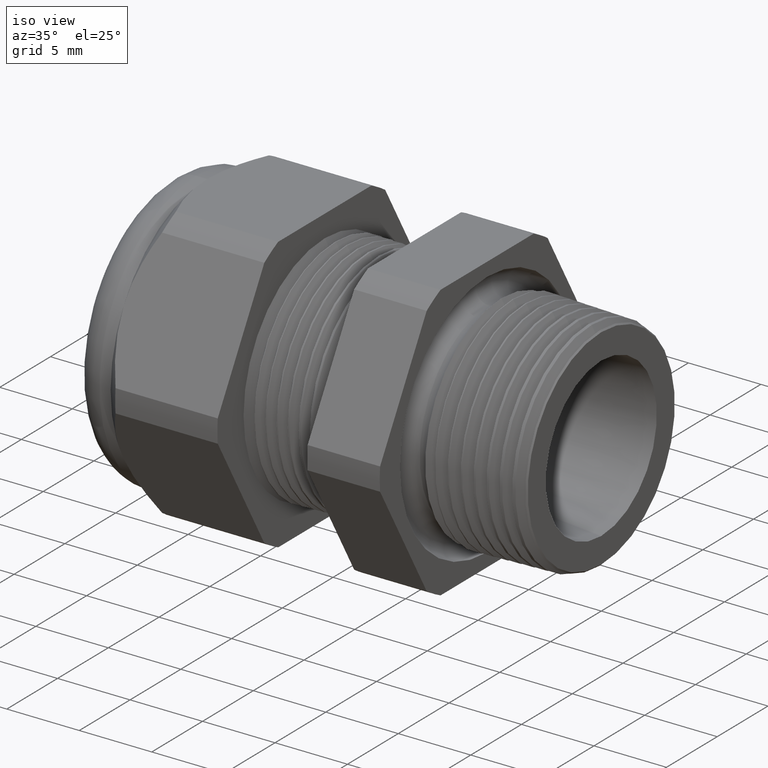
[diagram: clean part render]
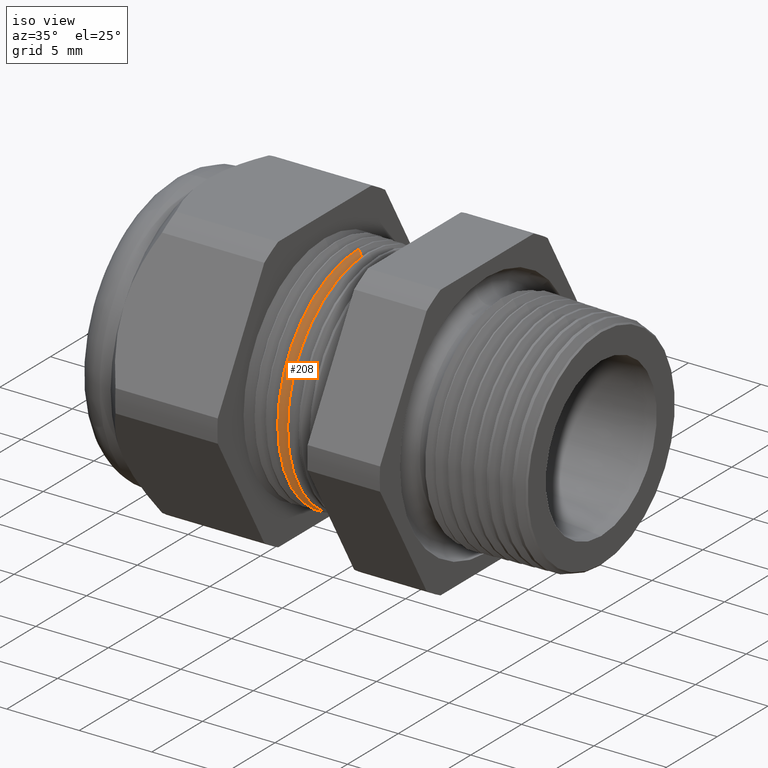
[diagram: same view with one face highlighted and labeled with its STEP entity id]
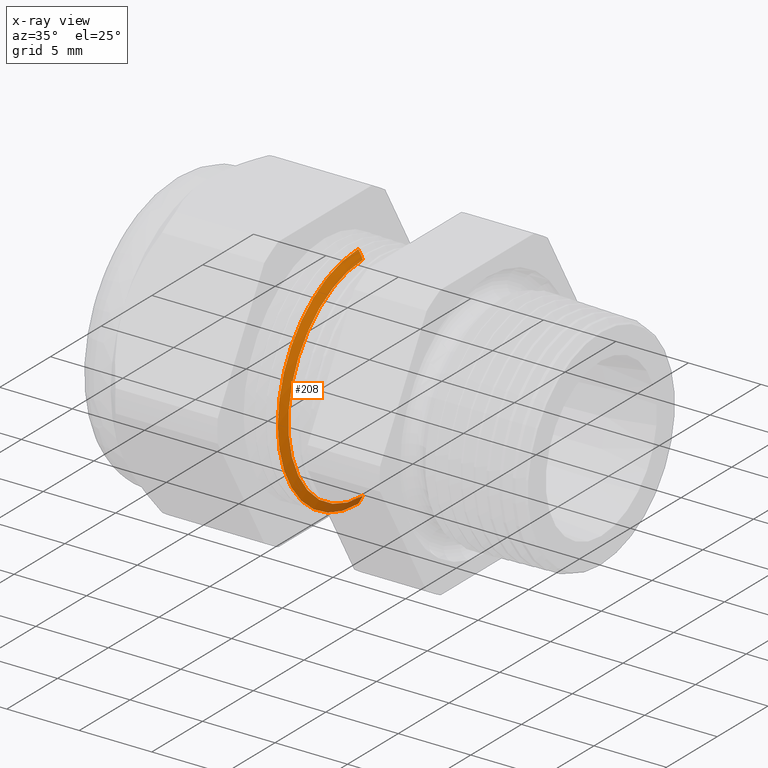
[diagram: x-ray of the same camera — body ghosted, the highlighted face saturated]
A machine part, iso view. The second image highlights one B-rep face of the part: STEP entity #208.
The next image is the same camera in x-ray: the body ghosted, the highlighted face saturated — about 8% of this face is hidden behind the body in this view.
In plain terms, the highlighted conical surface has half-angle 61.5 deg.
Its self-contained STEP definition (entity closure, byte-faithful):
#208 = ADVANCED_FACE ( 'NONE', ( #1420 ), #1419, .T. ) ;
#209 = EDGE_LOOP ( 'NONE', ( #210, #211, #213, #1050 ) ) ;
#210 = ORIENTED_EDGE ( 'NONE', *, *, #919, .F. ) ;
#211 = ORIENTED_EDGE ( 'NONE', *, *, #212, .F. ) ;
#212 = EDGE_CURVE ( 'NONE', #936, #929, #1418, .T. ) ;
#213 = ORIENTED_EDGE ( 'NONE', *, *, #953, .T. ) ;
#919 = EDGE_CURVE ( 'NONE', #929, #920, #2672, .T. ) ;
#920 = VERTEX_POINT ( 'NONE', #2668 ) ;
#929 = VERTEX_POINT ( 'NONE', #2719 ) ;
#936 = VERTEX_POINT ( 'NONE', #2700 ) ;
#940 = VERTEX_POINT ( 'NONE', #2693 ) ;
#953 = EDGE_CURVE ( 'NONE', #936, #940, #2731, .T. ) ;
#1050 = ORIENTED_EDGE ( 'NONE', *, *, #4028, .T. ) ;
#1416 = DIRECTION ( 'NONE',  ( -1.000000000000000000, 0.0000000000000000000, 0.0000000000000000000 ) ) ;
#1417 = AXIS2_PLACEMENT_3D ( 'NONE', #1424, #1416, #1480 ) ;
#1418 = CIRCLE ( 'NONE', #1479, 0.2896307351718083200 ) ;
#1419 = CONICAL_SURFACE ( 'NONE', #1417, 0.3150000000000000000, 1.073377489976500100 ) ;
#1420 = FACE_OUTER_BOUND ( 'NONE', #209, .T. ) ;
#1424 = CARTESIAN_POINT ( 'NONE',  ( -0.6608661417322834200, 0.0000000000000000000, 0.0000000000000000000 ) ) ;
#1476 = DIRECTION ( 'NONE',  ( 0.0000000000000000000, 0.0000000000000000000, -1.000000000000000000 ) ) ;
#1477 = DIRECTION ( 'NONE',  ( 1.000000000000000000, 0.0000000000000000000, 0.0000000000000000000 ) ) ;
#1478 = CARTESIAN_POINT ( 'NONE',  ( -0.6470917547981793700, 0.0000000000000000000, 0.0000000000000000000 ) ) ;
#1479 = AXIS2_PLACEMENT_3D ( 'NONE', #1478, #1477, #1476 ) ;
#1480 = DIRECTION ( 'NONE',  ( 0.0000000000000000000, 0.0000000000000000000, 1.000000000000000000 ) ) ;
#2668 = CARTESIAN_POINT ( 'NONE',  ( -0.6595680846391957000, 3.828902741387178900E-017, -0.3126092762375419200 ) ) ;
#2669 = DIRECTION ( 'NONE',  ( -0.4771587602596195100, 1.076240564057387400E-016, -0.8788171126619593900 ) ) ;
#2670 = VECTOR ( 'NONE', #2669, 39.37007874015748100 ) ;
#2671 = CARTESIAN_POINT ( 'NONE',  ( -0.6608661417322834200, 3.857637417314162700E-017, -0.3150000000000000000 ) ) ;
#2672 = LINE ( 'NONE', #2671, #2670 ) ;
#2693 = CARTESIAN_POINT ( 'NONE',  ( -0.6595680846391957000, 0.0000000000000000000, 0.3126092762375419200 ) ) ;
#2700 = CARTESIAN_POINT ( 'NONE',  ( -0.6470917547981793700, 0.0000000000000000000, 0.2896307351718083200 ) ) ;
#2719 = CARTESIAN_POINT ( 'NONE',  ( -0.6470917547981793700, 3.687656511454631100E-017, -0.2896307351718083200 ) ) ;
#2728 = DIRECTION ( 'NONE',  ( -0.4771587602596195100, 0.0000000000000000000, 0.8788171126619593900 ) ) ;
#2729 = VECTOR ( 'NONE', #2728, 39.37007874015748100 ) ;
#2730 = CARTESIAN_POINT ( 'NONE',  ( -0.6608661417322834200, 0.0000000000000000000, 0.3150000000000000000 ) ) ;
#2731 = LINE ( 'NONE', #2730, #2729 ) ;
#3522 = DIRECTION ( 'NONE',  ( 0.0000000000000000000, 0.0000000000000000000, 1.000000000000000000 ) ) ;
#3523 = DIRECTION ( 'NONE',  ( 1.000000000000000000, 0.0000000000000000000, 0.0000000000000000000 ) ) ;
#3524 = CARTESIAN_POINT ( 'NONE',  ( -0.6595680846391957000, 0.0000000000000000000, 0.0000000000000000000 ) ) ;
#3525 = AXIS2_PLACEMENT_3D ( 'NONE', #3524, #3523, #3522 ) ;
#3526 = CIRCLE ( 'NONE', #3525, 0.3126092762375419200 ) ;
#4028 = EDGE_CURVE ( 'NONE', #940, #920, #3526, .T. ) ;